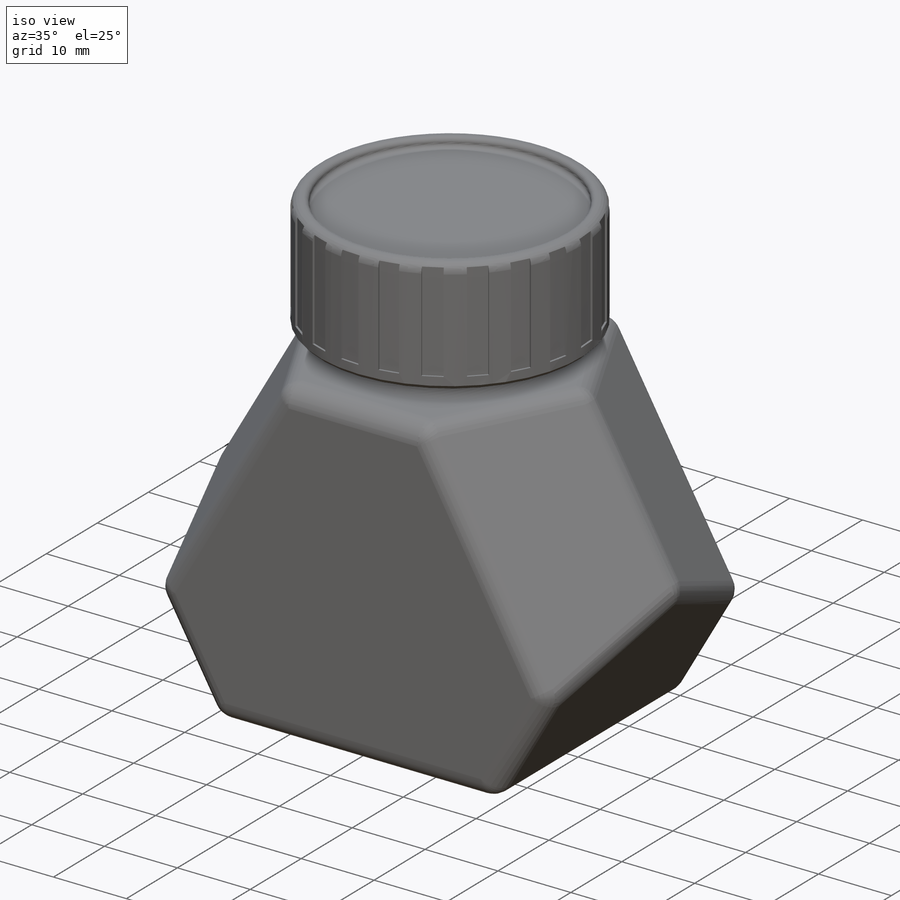
[diagram: iso view]
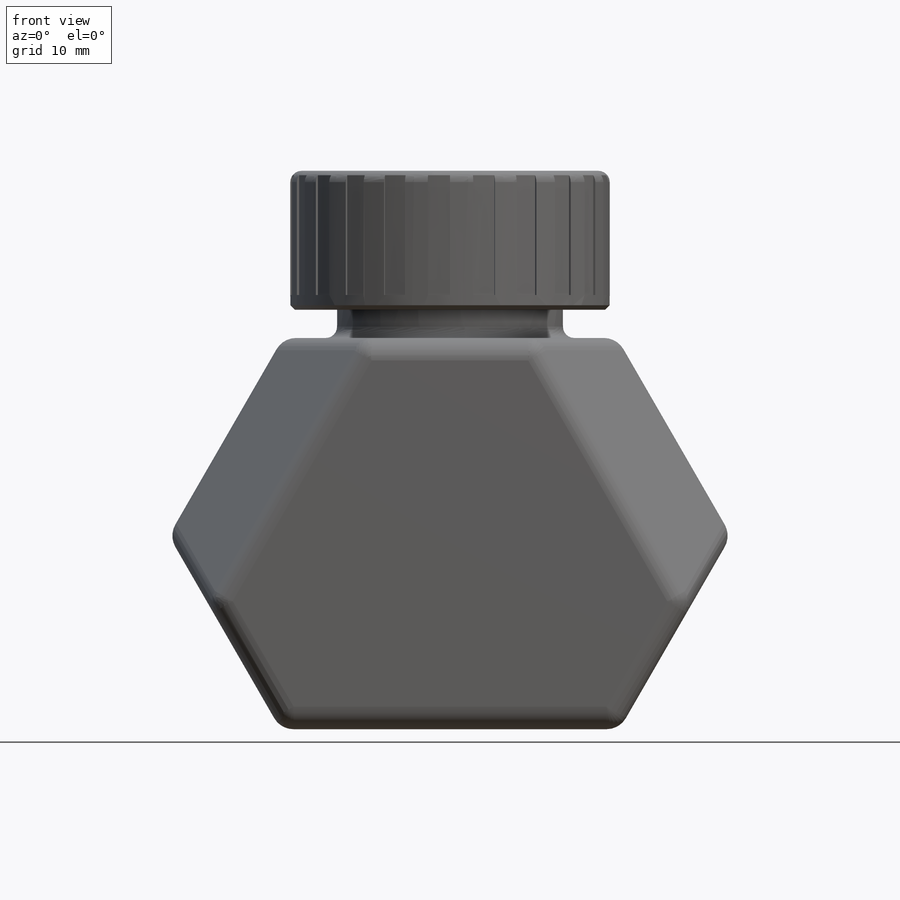
[diagram: front view]
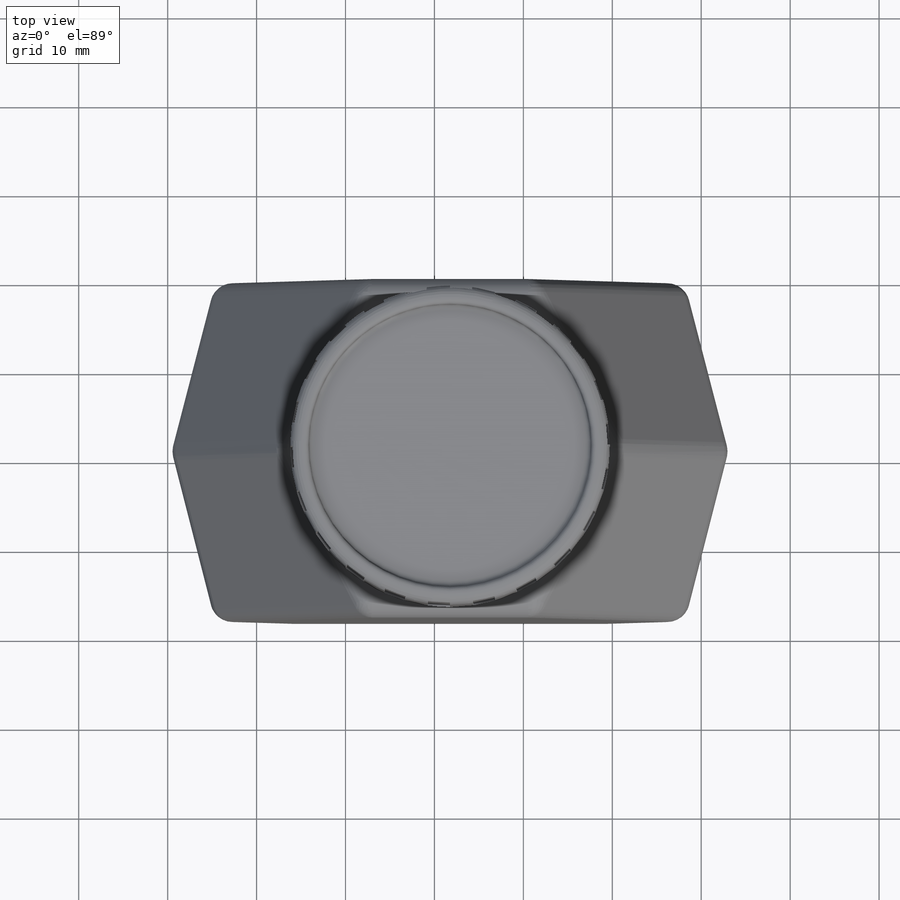
[diagram: top view]
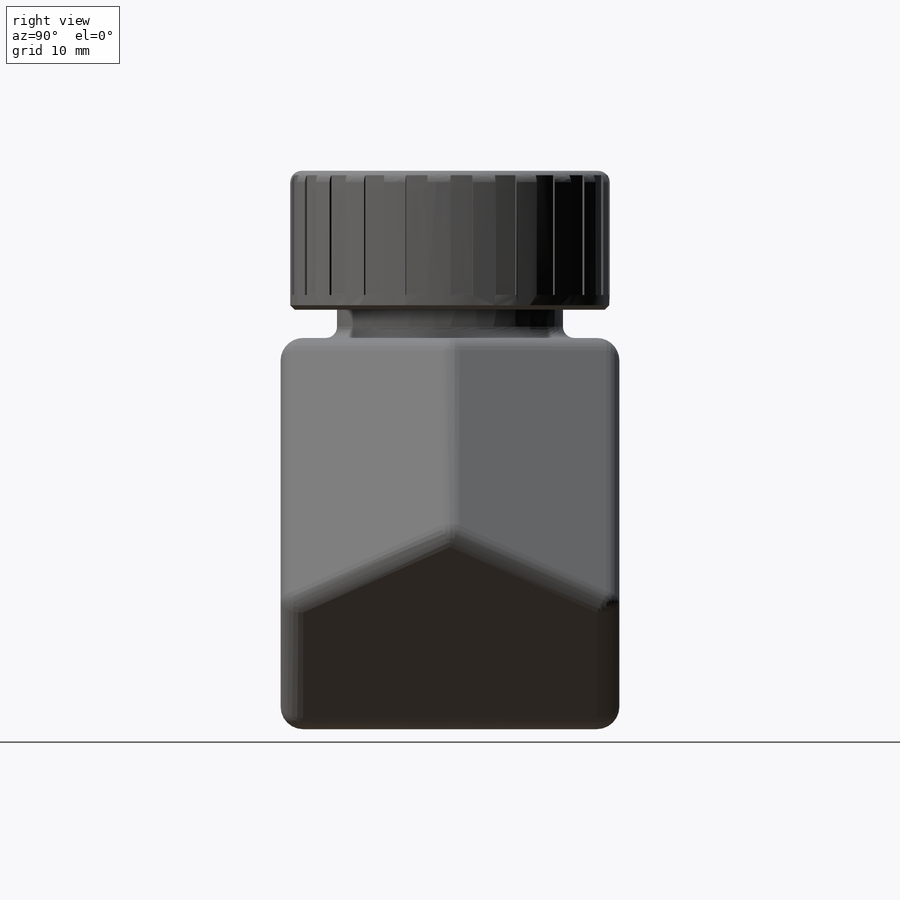
[diagram: right view]
SOLIDWORKS PART (.sldprt)
format: sldprt  version: not decoded by parser v0  size: 499,712 bytes
history: native  units: mm
features: sketch x9, extrude x3, plane x3, cut_extrude x3, fillet x3, material x1, mirror x1, cut_revolve x1, chamfer x1 (+11 scaffold rows collapsed)
feature tree (36):
  scaffold x11  (default folders/planes/origin — collapsed)
  material  "ABS"
  sketch  "Sketch2"  dims[c1.D1=63.5mm c1.D2=46.99mm c1.D3=19.05mm c1.D4=12.7mm c1.D5=0.254mm c2.D2=~26.707771mm c3.D2=60.0deg]
  extrude  "Boss-Extrude1"  Depth=38.1mm
  sketch  "Sketch3"  dims[c1.D1=~25.00576mm c2.D1=30.0deg c2.D2=~17.073777mm c3.D2=30.0deg]
  plane  "Plane1"
  sketch  "Sketch4"
  plane  "Plane2"
  sketch  "Sketch5"
  cut_extrude  "Cut-Extrude1"  [1 undecoded]
  plane  "Plane3"
  mirror  "Mirror1"
  sketch  "Sketch6"  dims[D1=25.4mm]
  extrude  "Boss-Extrude2"  Depth=3.175mm
  fillet  "Fillet1"  Radius=2.54mm
  fillet  "Fillet2"  Radius=1.27mm
  sketch  "Sketch7"  dims[D1=35.9156mm]
  extrude  "Boss-Extrude3"  Depth=15.621mm
  sketch  "Sketch8"  dims[c1.D1=0.254mm c1.D2=17.9578mm c2.D2=8.0deg c2.D3=22.0]
  cut_extrude  "Cut-Extrude2"  Depth=13.97mm
  sketch  "Sketch9"  dims[D1=31.75mm]
  cut_extrude  "Cut-Extrude3"  Depth=1.27mm
  fillet  "Fillet4"  Radius=0.635mm
  sketch  "Sketch10"  dims[D1=1.27mm]
  cut_revolve  "Cut-Revolve2"  Angle=360deg
  chamfer  "Chamfer1"  Distance=0.508mm Angle=45deg
decode coverage: 17 of 21 modeling features carry decoded parameters
note: ~ marks probable driven/reference dimensions
note: 1 parameter value undecoded
note: suppression state not decoded; provenance and decode notes live in map.json
